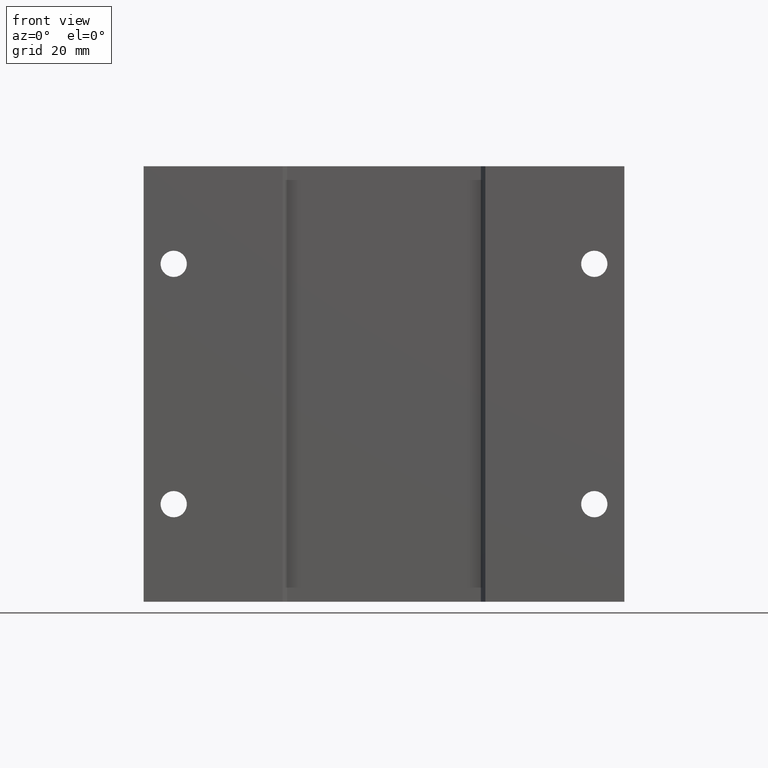
[diagram: clean part render]
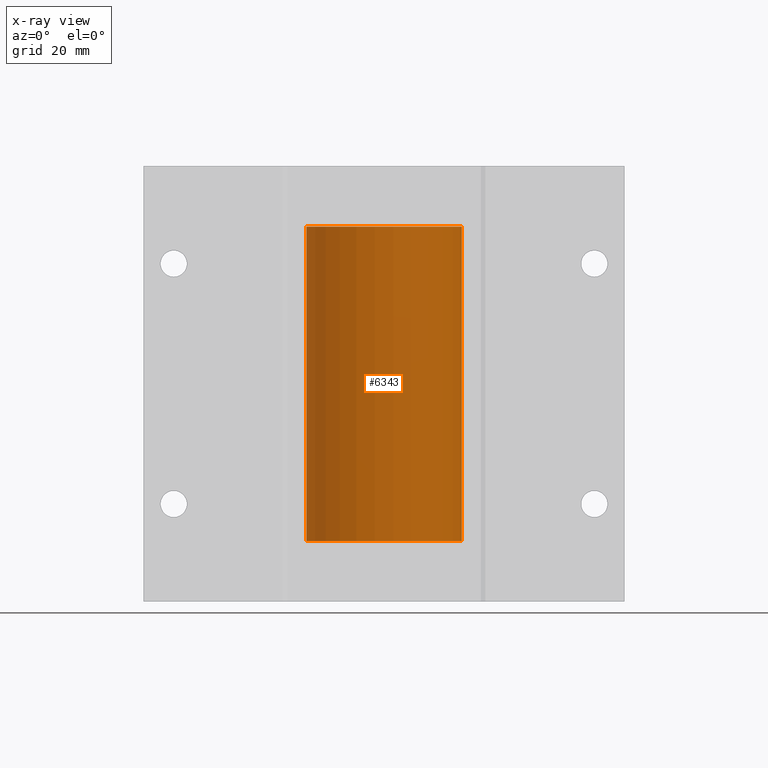
[diagram: x-ray — body ghosted, one internal face saturated and labeled with its STEP entity id]
A machine part, front view, then the same camera in x-ray: the body is ghosted and one INTERNAL B-rep face — a face not visible from any outside direction — is saturated and labeled: STEP entity #6343.
In plain terms, the highlighted cylindrical surface (partial cylindrical patch) has radius 16.4465 mm, axis along (0, 0, -1).
Its self-contained STEP definition (entity closure, byte-faithful):
#42 = CARTESIAN_POINT ( 'NONE',  ( 0.6474999999999999645, 7.929588024479112331E-17, 1.321249999999999813 ) ) ;
#59 = AXIS2_PLACEMENT_3D ( 'NONE', #6602, #1096, #4132 ) ;
#490 = DIRECTION ( 'NONE',  ( -1.000000000000000000, 0.000000000000000000, 0.000000000000000000 ) ) ;
#825 = FACE_OUTER_BOUND ( 'NONE', #5296, .T. ) ;
#959 = DIRECTION ( 'NONE',  ( -0.000000000000000000, -7.409750808357105022E-17, -1.000000000000000000 ) ) ;
#1053 = AXIS2_PLACEMENT_3D ( 'NONE', #4655, #3583, #490 ) ;
#1081 = ORIENTED_EDGE ( 'NONE', *, *, #1500, .F. ) ;
#1096 = DIRECTION ( 'NONE',  ( -0.000000000000000000, -7.409750808357105022E-17, 1.000000000000000000 ) ) ;
#1378 = CARTESIAN_POINT ( 'NONE',  ( 0.6474999999999999645, 7.929588024479113563E-17, -1.308750000000000302 ) ) ;
#1406 = EDGE_CURVE ( 'NONE', #6870, #3545, #4349, .T. ) ;
#1500 = EDGE_CURVE ( 'NONE', #6870, #7726, #3763, .T. ) ;
#1892 = LINE ( 'NONE', #42, #1929 ) ;
#1929 = VECTOR ( 'NONE', #4410, 39.37007874015748143 ) ;
#2343 = CARTESIAN_POINT ( 'NONE',  ( -0.6474999999999999645, 0.000000000000000000, 1.308750000000000080 ) ) ;
#2969 = CARTESIAN_POINT ( 'NONE',  ( 0.000000000000000000, 0.000000000000000000, -1.308750000000000302 ) ) ;
#3009 = ORIENTED_EDGE ( 'NONE', *, *, #5066, .T. ) ;
#3545 = VERTEX_POINT ( 'NONE', #4760 ) ;
#3583 = DIRECTION ( 'NONE',  ( 0.000000000000000000, 0.000000000000000000, -1.000000000000000000 ) ) ;
#3763 = LINE ( 'NONE', #8051, #6850 ) ;
#4015 = AXIS2_PLACEMENT_3D ( 'NONE', #2969, #959, #6583 ) ;
#4132 = DIRECTION ( 'NONE',  ( 0.000000000000000000, -1.000000000000000000, 0.000000000000000000 ) ) ;
#4349 = CIRCLE ( 'NONE', #59, 0.6474999999999999645 ) ;
#4410 = DIRECTION ( 'NONE',  ( 0.000000000000000000, 0.000000000000000000, -1.000000000000000000 ) ) ;
#4655 = CARTESIAN_POINT ( 'NONE',  ( 0.000000000000000000, 0.000000000000000000, 1.321249999999999813 ) ) ;
#4760 = CARTESIAN_POINT ( 'NONE',  ( 0.6474999999999999645, 7.929588024479112331E-17, 1.308750000000000080 ) ) ;
#4815 = EDGE_CURVE ( 'NONE', #3545, #6072, #1892, .T. ) ;
#5066 = EDGE_CURVE ( 'NONE', #6072, #7726, #7292, .T. ) ;
#5296 = EDGE_LOOP ( 'NONE', ( #7747, #8019, #3009, #1081 ) ) ;
#5716 = DIRECTION ( 'NONE',  ( 0.000000000000000000, 0.000000000000000000, -1.000000000000000000 ) ) ;
#6072 = VERTEX_POINT ( 'NONE', #1378 ) ;
#6105 = CARTESIAN_POINT ( 'NONE',  ( -0.6474999999999999645, 2.024231287936250981E-32, -1.308750000000000302 ) ) ;
#6343 = ADVANCED_FACE ( 'NONE', ( #825 ), #7110, .F. ) ;
#6583 = DIRECTION ( 'NONE',  ( 0.000000000000000000, 1.000000000000000000, -4.219070260485348640E-16 ) ) ;
#6602 = CARTESIAN_POINT ( 'NONE',  ( 0.000000000000000000, 0.000000000000000000, 1.308750000000000080 ) ) ;
#6850 = VECTOR ( 'NONE', #5716, 39.37007874015748143 ) ;
#6870 = VERTEX_POINT ( 'NONE', #2343 ) ;
#7110 = CYLINDRICAL_SURFACE ( 'NONE', #1053, 0.6474999999999999645 ) ;
#7292 = CIRCLE ( 'NONE', #4015, 0.6474999999999999645 ) ;
#7726 = VERTEX_POINT ( 'NONE', #6105 ) ;
#7747 = ORIENTED_EDGE ( 'NONE', *, *, #1406, .T. ) ;
#8019 = ORIENTED_EDGE ( 'NONE', *, *, #4815, .T. ) ;
#8051 = CARTESIAN_POINT ( 'NONE',  ( -0.6474999999999999645, 0.000000000000000000, 1.321249999999999813 ) ) ;